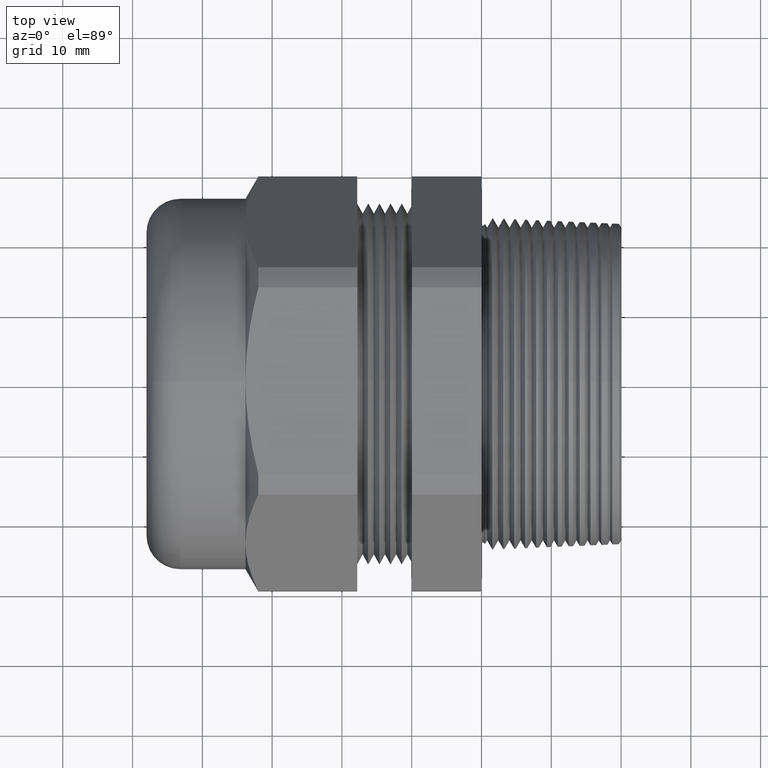
[diagram: clean part render]
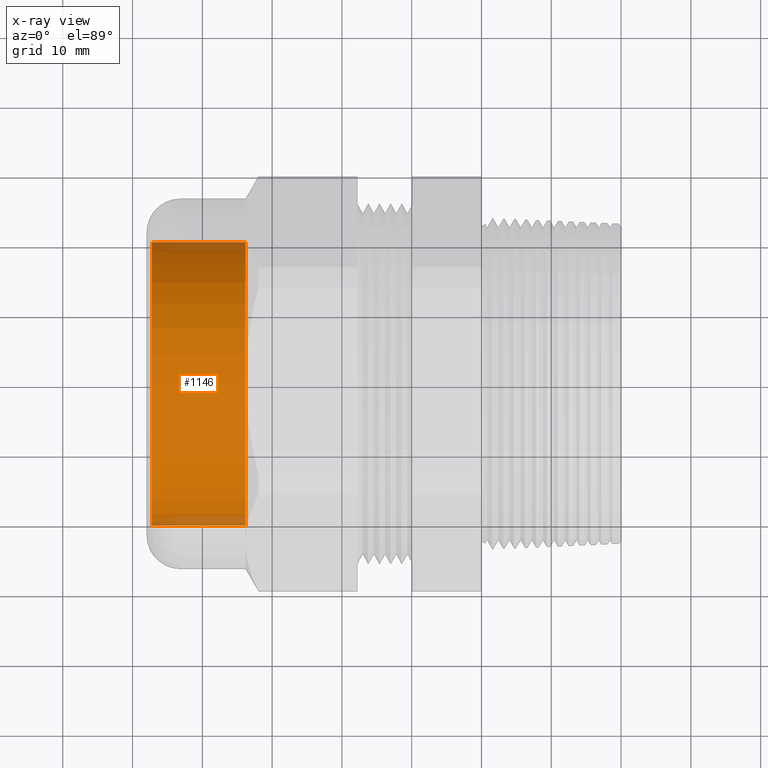
[diagram: x-ray — body ghosted, one internal face saturated and labeled with its STEP entity id]
A machine part, top view, then the same camera in x-ray: the body is ghosted and one INTERNAL B-rep face — a face not visible from any outside direction — is saturated and labeled: STEP entity #1146.
In plain terms, the highlighted cylindrical surface (partial cylindrical patch) has radius 20.2946 mm, axis along (1, 0, 0).
Its self-contained STEP definition (entity closure, byte-faithful):
#1108 = EDGE_CURVE ( 'NONE', #1548, #1117, #2101, .T. ) ;
#1116 = ORIENTED_EDGE ( 'NONE', *, *, #1108, .F. ) ;
#1117 = VERTEX_POINT ( 'NONE', #2082 ) ;
#1120 = ORIENTED_EDGE ( 'NONE', *, *, #1562, .T. ) ;
#1123 = ORIENTED_EDGE ( 'NONE', *, *, #1142, .T. ) ;
#1138 = ORIENTED_EDGE ( 'NONE', *, *, #1140, .F. ) ;
#1140 = EDGE_CURVE ( 'NONE', #1117, #1141, #2106, .T. ) ;
#1141 = VERTEX_POINT ( 'NONE', #2163 ) ;
#1142 = EDGE_CURVE ( 'NONE', #2389, #1141, #2162, .T. ) ;
#1146 = ADVANCED_FACE ( 'NONE', ( #2158 ), #2157, .T. ) ;
#1310 = EDGE_LOOP ( 'NONE', ( #1120, #1123, #1138, #1116 ) ) ;
#1548 = VERTEX_POINT ( 'NONE', #3018 ) ;
#1562 = EDGE_CURVE ( 'NONE', #1548, #2389, #3010, .T. ) ;
#2082 = CARTESIAN_POINT ( 'NONE',  ( -1.331250000000000300, 0.7989999999999998200, 0.0000000000000000000 ) ) ;
#2094 = DIRECTION ( 'NONE',  ( 1.000000000000000000, 1.214306433183765200E-016, 0.0000000000000000000 ) ) ;
#2095 = VECTOR ( 'NONE', #2094, 39.37007874015748100 ) ;
#2096 = CARTESIAN_POINT ( 'NONE',  ( 0.3764656411965714400, 0.7990000000000001500, 0.0000000000000000000 ) ) ;
#2101 = LINE ( 'NONE', #2096, #2095 ) ;
#2106 = CIRCLE ( 'NONE', #2167, 0.7990000000000001500 ) ;
#2152 = DIRECTION ( 'NONE',  ( -8.547709617222348300E-017, 1.000000000000000000, 0.0000000000000000000 ) ) ;
#2153 = DIRECTION ( 'NONE',  ( 1.000000000000000000, 1.214306433183765200E-016, 0.0000000000000000000 ) ) ;
#2154 = CARTESIAN_POINT ( 'NONE',  ( 0.3764656411965715000, 0.0000000000000000000, 0.0000000000000000000 ) ) ;
#2155 = AXIS2_PLACEMENT_3D ( 'NONE', #2154, #2153, #2152 ) ;
#2157 = CYLINDRICAL_SURFACE ( 'NONE', #2155, 0.7990000000000001500 ) ;
#2158 = FACE_OUTER_BOUND ( 'NONE', #1310, .T. ) ;
#2159 = DIRECTION ( 'NONE',  ( 1.000000000000000000, 1.214306433183765200E-016, 0.0000000000000000000 ) ) ;
#2160 = VECTOR ( 'NONE', #2159, 39.37007874015748100 ) ;
#2161 = CARTESIAN_POINT ( 'NONE',  ( 0.3764656411965715500, -0.7990000000000001500, 9.784927925187353900E-017 ) ) ;
#2162 = LINE ( 'NONE', #2161, #2160 ) ;
#2163 = CARTESIAN_POINT ( 'NONE',  ( -1.331250000000000300, -0.7990000000000003800, 9.784927925187353900E-017 ) ) ;
#2164 = DIRECTION ( 'NONE',  ( 0.0000000000000000000, 1.000000000000000000, 0.0000000000000000000 ) ) ;
#2165 = DIRECTION ( 'NONE',  ( 1.000000000000000000, 1.214306433183765200E-016, 0.0000000000000000000 ) ) ;
#2166 = CARTESIAN_POINT ( 'NONE',  ( -1.331250000000000300, -2.073690089153535400E-016, 0.0000000000000000000 ) ) ;
#2167 = AXIS2_PLACEMENT_3D ( 'NONE', #2166, #2165, #2164 ) ;
#2389 = VERTEX_POINT ( 'NONE', #3103 ) ;
#3006 = DIRECTION ( 'NONE',  ( 0.0000000000000000000, -1.000000000000000000, 0.0000000000000000000 ) ) ;
#3007 = DIRECTION ( 'NONE',  ( 1.000000000000000000, 1.214306433183765200E-016, 0.0000000000000000000 ) ) ;
#3008 = CARTESIAN_POINT ( 'NONE',  ( -1.859999999999999900, -2.715754615699450700E-016, 0.0000000000000000000 ) ) ;
#3009 = AXIS2_PLACEMENT_3D ( 'NONE', #3008, #3007, #3006 ) ;
#3010 = CIRCLE ( 'NONE', #3009, 0.7990000000000001500 ) ;
#3018 = CARTESIAN_POINT ( 'NONE',  ( -1.859999999999999900, 0.7989999999999998200, 0.0000000000000000000 ) ) ;
#3103 = CARTESIAN_POINT ( 'NONE',  ( -1.859999999999999900, -0.7990000000000003800, 9.784927925187353900E-017 ) ) ;